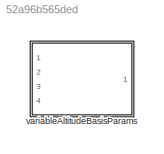
MODEL slx_52a96b565ded
KIND library
CONFIG AbsTol = auto
CONFIG EnableMultiTasking = off
CONFIG FixedStep = auto
CONFIG MaxStep = auto
CONFIG MinStep = auto
CONFIG RelTol = 1e-3
CONFIG SampleTimeConstraint = Unconstrained
CONFIG SolverName = VariableStepAuto
CONFIG StartTime = 0.0
CONFIG StopTime = 10.0
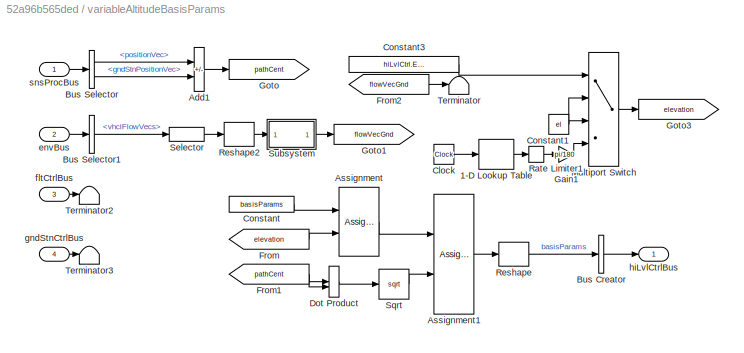
BLOCK [SubSystem] variableAltitudeBasisParams
  InitFcn = initializeBussesFromBlock(gcb)
  LoadFcn = initializeBussesFromBlock(gcb)
  Ports = [4, 1]
  RequestExecContextInheritance = off
  StartFcn = initializeBussesFromBlock(gcb)
  VariantControl = strcmpi(HILVLCONTROLLER,'variableAltitudeBasisParams')
BLOCK [Lookup_n-D] variableAltitudeBasisParams/1-D Lookup Table
  BreakpointsForDimension1 = [0 500 1000 1500]
  InputPortMap = u0
  InternalRulePriority = Speed
  InterpMethod = Flat
  NumberOfTableDimensions = 1
  Ports = [1, 1]
  RndMeth = Simplest
  Table = [el*180/pi 15 40 el*180/pi]
BLOCK [Sum] variableAltitudeBasisParams/Add1
  IconShape = rectangular
  Inputs = +-
  Ports = [2, 1]
BLOCK [Assignment] variableAltitudeBasisParams/Assignment
  DiagnosticForDimensions = Warning
  IndexOptions = Index vector (dialog)
  Indices = 3
  OutputSizes = 1
  Ports = [2, 1]
BLOCK [Assignment] variableAltitudeBasisParams/Assignment1
  DiagnosticForDimensions = Warning
  IndexOptions = Index vector (dialog)
  Indices = 5
  OutputSizes = 1
  Ports = [2, 1]
BLOCK [BusCreator] variableAltitudeBasisParams/Bus Creator
  DisplayOption = bar
  InheritFromInputs = on
  Inputs = 1
  OutDataTypeStr = Bus: hiLvlCtrlBus
  Ports = [1, 1]
BLOCK [BusSelector] variableAltitudeBasisParams/Bus Selector
  OutputSignals = positionVec,gndStnPositionVec
  Ports = [1, 2]
BLOCK [BusSelector] variableAltitudeBasisParams/Bus Selector1
  OutputSignals = vhclFlowVecs
  Ports = [1, 1]
BLOCK [Clock] variableAltitudeBasisParams/Clock
BLOCK [Constant] variableAltitudeBasisParams/Constant
  Value = basisParams
BLOCK [Constant] variableAltitudeBasisParams/Constant1
  Value = el
BLOCK [Constant] variableAltitudeBasisParams/Constant3
  Value = hiLvlCtrl.ELctrl.Value
BLOCK [DotProduct] variableAltitudeBasisParams/Dot Product
  OutDataTypeStr = Inherit: Inherit via internal rule
BLOCK [From] variableAltitudeBasisParams/From
  GotoTag = elevation
BLOCK [From] variableAltitudeBasisParams/From1
  GotoTag = pathCent
BLOCK [From] variableAltitudeBasisParams/From2
  GotoTag = flowVecGnd
BLOCK [Gain] variableAltitudeBasisParams/Gain1
  Gain = pi/180
BLOCK [Goto] variableAltitudeBasisParams/Goto
  GotoTag = pathCent
BLOCK [Goto] variableAltitudeBasisParams/Goto1
  GotoTag = flowVecGnd
BLOCK [Goto] variableAltitudeBasisParams/Goto3
  GotoTag = elevation
BLOCK [MultiPortSwitch] variableAltitudeBasisParams/Multiport Switch
  DataPortIndices = {0,1,2}
  DataPortOrder = Specify indices
  InputSameDT = off
  Inputs = 2
  Ports = [4, 1]
  SaturateOnIntegerOverflow = off
BLOCK [RateLimiter] variableAltitudeBasisParams/Rate Limiter1
  FallingSlewLimit = -hiLvlCtrl.ELslew.Value
  RisingSlewLimit = hiLvlCtrl.ELslew.Value
  SampleTimeMode = inherited
BLOCK [Reshape] variableAltitudeBasisParams/Reshape
  OutputDimensionality = Column vector (2-D)
  Ports = [1, 1]
BLOCK [Reshape] variableAltitudeBasisParams/Reshape2
  OutputDimensionality = Column vector (2-D)
  Ports = [1, 1]
BLOCK [Selector] variableAltitudeBasisParams/Selector
  IndexOptions = Select all,Index vector (dialog)
  Indices = [1 3],5
  InputPortWidth = 3
  NumberOfDimensions = 2
  OutputSizes = 1,1
  Ports = [1, 1]
BLOCK [Sqrt] variableAltitudeBasisParams/Sqrt
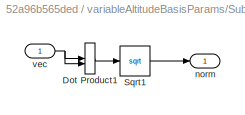
BLOCK [SubSystem] variableAltitudeBasisParams/Subsystem
  Ports = [1, 1]
  RequestExecContextInheritance = off
BLOCK [DotProduct] variableAltitudeBasisParams/Subsystem/Dot Product1
  OutDataTypeStr = Inherit: Inherit via internal rule
BLOCK [Sqrt] variableAltitudeBasisParams/Subsystem/Sqrt1
BLOCK [Outport] variableAltitudeBasisParams/Subsystem/norm
BLOCK [Inport] variableAltitudeBasisParams/Subsystem/vec
BLOCK [Terminator] variableAltitudeBasisParams/Terminator
BLOCK [Terminator] variableAltitudeBasisParams/Terminator2
BLOCK [Terminator] variableAltitudeBasisParams/Terminator3
BLOCK [Inport] variableAltitudeBasisParams/envBus
  OutDataTypeStr = Bus: envBus
  Port = 2
BLOCK [Inport] variableAltitudeBasisParams/fltCtrlBus
  OutDataTypeStr = Bus: fltCtrlBus
  Port = 3
BLOCK [Inport] variableAltitudeBasisParams/gndStnCtrlBus
  OutDataTypeStr = Bus: gndStnCtrlBus
  Port = 4
BLOCK [Outport] variableAltitudeBasisParams/hiLvlCtrlBus
  OutDataTypeStr = Bus: hiLvlCtrlBus
  VectorParamsAs1DForOutWhenUnconnected = off
BLOCK [Inport] variableAltitudeBasisParams/snsProcBus
  OutDataTypeStr = Bus: sensorsProcessingBus
LINE variableAltitudeBasisParams/1-D Lookup Table:1 -> variableAltitudeBasisParams/Rate Limiter1:1
LINE variableAltitudeBasisParams/Add1:1 -> variableAltitudeBasisParams/Goto:1
LINE variableAltitudeBasisParams/Assignment1:1 -> variableAltitudeBasisParams/Reshape:1
LINE variableAltitudeBasisParams/Assignment:1 -> variableAltitudeBasisParams/Assignment1:1
LINE variableAltitudeBasisParams/Bus Creator:1 -> variableAltitudeBasisParams/hiLvlCtrlBus:1
LINE variableAltitudeBasisParams/Bus Selector1:1 -> variableAltitudeBasisParams/Selector:1
LINE variableAltitudeBasisParams/Bus Selector:1 -> variableAltitudeBasisParams/Add1:1
LINE variableAltitudeBasisParams/Bus Selector:2 -> variableAltitudeBasisParams/Add1:2
LINE variableAltitudeBasisParams/Clock:1 -> variableAltitudeBasisParams/1-D Lookup Table:1
NET variableAltitudeBasisParams/Constant1:1 -> variableAltitudeBasisParams/Multiport Switch:2, variableAltitudeBasisParams/Multiport Switch:3
LINE variableAltitudeBasisParams/Constant3:1 -> variableAltitudeBasisParams/Multiport Switch:1
LINE variableAltitudeBasisParams/Constant:1 -> variableAltitudeBasisParams/Assignment:1
LINE variableAltitudeBasisParams/Dot Product:1 -> variableAltitudeBasisParams/Sqrt:1
NET variableAltitudeBasisParams/From1:1 -> variableAltitudeBasisParams/Dot Product:1, variableAltitudeBasisParams/Dot Product:2
LINE variableAltitudeBasisParams/From2:1 -> variableAltitudeBasisParams/Terminator:1
LINE variableAltitudeBasisParams/From:1 -> variableAltitudeBasisParams/Assignment:2
LINE variableAltitudeBasisParams/Gain1:1 -> variableAltitudeBasisParams/Multiport Switch:4
LINE variableAltitudeBasisParams/Multiport Switch:1 -> variableAltitudeBasisParams/Goto3:1
LINE variableAltitudeBasisParams/Rate Limiter1:1 -> variableAltitudeBasisParams/Gain1:1
LINE variableAltitudeBasisParams/Reshape2:1 -> variableAltitudeBasisParams/Subsystem:1
LINE variableAltitudeBasisParams/Reshape:1 -> variableAltitudeBasisParams/Bus Creator:1
LINE variableAltitudeBasisParams/Selector:1 -> variableAltitudeBasisParams/Reshape2:1
LINE variableAltitudeBasisParams/Sqrt:1 -> variableAltitudeBasisParams/Assignment1:2
LINE variableAltitudeBasisParams/Subsystem/Dot Product1:1 -> variableAltitudeBasisParams/Subsystem/Sqrt1:1
LINE variableAltitudeBasisParams/Subsystem/Sqrt1:1 -> variableAltitudeBasisParams/Subsystem/norm:1
NET variableAltitudeBasisParams/Subsystem/vec:1 -> variableAltitudeBasisParams/Subsystem/Dot Product1:1, variableAltitudeBasisParams/Subsystem/Dot Product1:2
LINE variableAltitudeBasisParams/Subsystem:1 -> variableAltitudeBasisParams/Goto1:1
LINE variableAltitudeBasisParams/envBus:1 -> variableAltitudeBasisParams/Bus Selector1:1
LINE variableAltitudeBasisParams/fltCtrlBus:1 -> variableAltitudeBasisParams/Terminator2:1
LINE variableAltitudeBasisParams/gndStnCtrlBus:1 -> variableAltitudeBasisParams/Terminator3:1
LINE variableAltitudeBasisParams/snsProcBus:1 -> variableAltitudeBasisParams/Bus Selector:1
note: NET lines group one-source signal fan-out (src -> all destinations, sorted); 1:1 wires keep LINE
